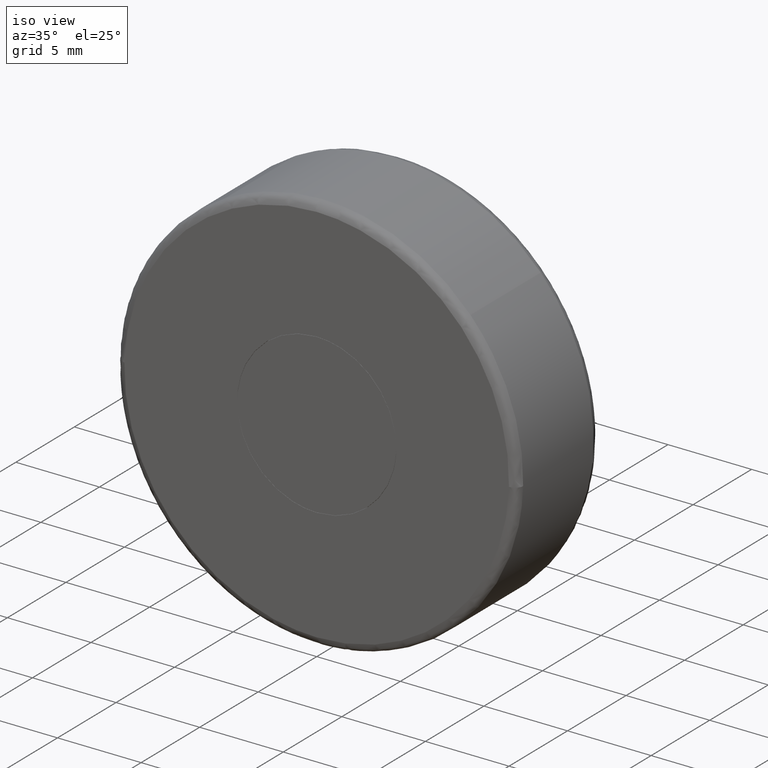
[diagram: clean part render]
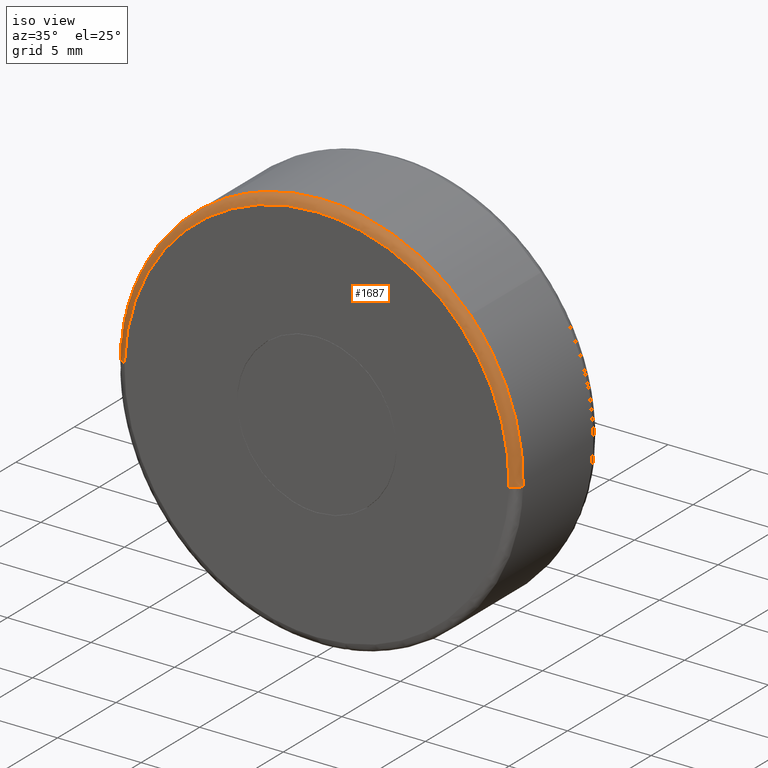
[diagram: same view with one face highlighted and labeled with its STEP entity id]
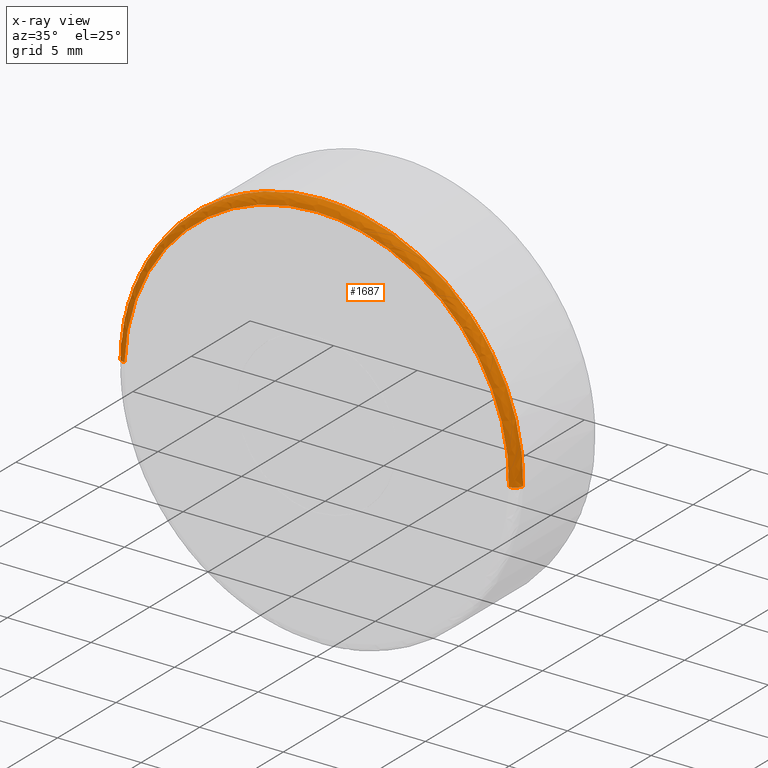
[diagram: x-ray of the same camera — body ghosted, the highlighted face saturated]
A machine part, iso view. The second image highlights one B-rep face of the part: STEP entity #1687.
The next image is the same camera in x-ray: the body ghosted, the highlighted face saturated — about 0% of this face is hidden behind the body in this view.
In plain terms, the highlighted face is a freeform B-spline surface patch.
Its self-contained STEP definition (entity closure, byte-faithful):
#1320=CARTESIAN_POINT('',(-5.810634932665174,0.499999999980924,10.499358155586769));
#1321=VERTEX_POINT('',#1320);
#1322=CARTESIAN_POINT('',(-11.996210271399590,0.499999999851395,0.301561145320187));
#1323=VERTEX_POINT('',#1322);
#1324=CARTESIAN_POINT('',(-5.810634932665174,0.499999999980924,10.499358155586771));
#1325=CARTESIAN_POINT('',(-11.823509306634717,0.499999999938666,7.171667322931254));
#1326=CARTESIAN_POINT('',(-11.996210271399599,0.499999999851396,0.301561145320187));
#1334=(BOUNDED_CURVE()B_SPLINE_CURVE(2,(#1324,#1325,#1326),.UNSPECIFIED.,.F.,.U.)B_SPLINE_CURVE_WITH_KNOTS((3,3),(0.582484261791916,0.745579891769803),.UNSPECIFIED.)CURVE()GEOMETRIC_REPRESENTATION_ITEM()RATIONAL_B_SPLINE_CURVE((0.870495159113431,0.805504439765903,0.989826157681565))REPRESENTATION_ITEM(''));
#1335=EDGE_CURVE('',#1321,#1323,#1334,.T.);
#1406=CARTESIAN_POINT('',(8.847328482693925,0.500000000000004,8.107082010150897));
#1407=VERTEX_POINT('',#1406);
#1413=CARTESIAN_POINT('',(11.996210271399590,0.499999999851395,-0.301561145320187));
#1414=VERTEX_POINT('',#1413);
#1415=CARTESIAN_POINT('',(11.996210271399594,0.499999999851395,-0.301561145320187));
#1416=CARTESIAN_POINT('',(12.000000000000002,0.500000000000000,-0.150804385480692));
#1417=CARTESIAN_POINT('',(12.0,0.500000000000000,-1.535880E-016));
#1418=CARTESIAN_POINT('',(12.000000000000002,0.500000000000000,4.666544030805148));
#1419=CARTESIAN_POINT('',(8.847328482693925,0.500000000000004,8.107082010150897));
#1427=(BOUNDED_CURVE()B_SPLINE_CURVE(2,(#1415,#1416,#1417,#1418,#1419),.UNSPECIFIED.,.F.,.U.)B_SPLINE_CURVE_WITH_KNOTS((3,2,3),(0.245579891769804,0.250000000000000,0.368415192661571),.UNSPECIFIED.)CURVE()GEOMETRIC_REPRESENTATION_ITEM()RATIONAL_B_SPLINE_CURVE((0.989826157681567,0.994821521091816,1.0,0.861267972259750,0.853959782865036))REPRESENTATION_ITEM(''));
#1428=EDGE_CURVE('',#1414,#1407,#1427,.T.);
#1477=CARTESIAN_POINT('',(0.0,0.500000000000000,12.0));
#1478=VERTEX_POINT('',#1477);
#1479=CARTESIAN_POINT('',(0.0,0.500000000000000,12.0));
#1480=CARTESIAN_POINT('',(-3.099093703464986,0.500000000000000,11.999999999999996));
#1481=CARTESIAN_POINT('',(-5.810634932665174,0.499999999980924,10.499358155586771));
#1489=(BOUNDED_CURVE()B_SPLINE_CURVE(2,(#1479,#1480,#1481),.UNSPECIFIED.,.F.,.U.)B_SPLINE_CURVE_WITH_KNOTS((3,3),(0.500000000000000,0.582484261791916),.UNSPECIFIED.)CURVE()GEOMETRIC_REPRESENTATION_ITEM()RATIONAL_B_SPLINE_CURVE((1.0,0.903363676249257,0.870495159113431))REPRESENTATION_ITEM(''));
#1490=EDGE_CURVE('',#1478,#1321,#1489,.T.);
#1492=CARTESIAN_POINT('',(8.847328482693925,0.500000000000004,8.107082010150897));
#1493=CARTESIAN_POINT('',(5.280127149796825,0.500000000000000,12.000000000000002));
#1494=CARTESIAN_POINT('',(0.0,0.500000000000000,12.0));
#1502=(BOUNDED_CURVE()B_SPLINE_CURVE(2,(#1492,#1493,#1494),.UNSPECIFIED.,.F.,.U.)B_SPLINE_CURVE_WITH_KNOTS((3,3),(0.368415192661570,0.500000000000000),.UNSPECIFIED.)CURVE()GEOMETRIC_REPRESENTATION_ITEM()RATIONAL_B_SPLINE_CURVE((0.853959782865036,0.845838808926797,1.0))REPRESENTATION_ITEM(''));
#1503=EDGE_CURVE('',#1407,#1478,#1502,.T.);
#1561=CARTESIAN_POINT('',(-11.496368177523900,-9.688065E-016,0.288996097631335));
#1562=VERTEX_POINT('',#1561);
#1580=CARTESIAN_POINT('',(-11.996210271399599,0.499999999851395,0.301561145320187));
#1581=CARTESIAN_POINT('',(-11.996210271102481,1.533080E-009,0.301561145312582));
#1582=CARTESIAN_POINT('',(-11.496368177523905,-9.688065E-016,0.288996097631335));
#1590=(BOUNDED_CURVE()B_SPLINE_CURVE(2,(#1580,#1581,#1582),.UNSPECIFIED.,.F.,.U.)B_SPLINE_CURVE_WITH_KNOTS((3,3),(-1.723441281372762,-0.263586882101191),.UNSPECIFIED.)CURVE()GEOMETRIC_REPRESENTATION_ITEM()RATIONAL_B_SPLINE_CURVE((0.883897566922966,0.626638727906540,0.888510407924062))REPRESENTATION_ITEM(''));
#1591=EDGE_CURVE('',#1323,#1562,#1590,.T.);
#1595=CARTESIAN_POINT('',(11.496368177523900,-9.609969E-016,-0.288996097631335));
#1596=VERTEX_POINT('',#1595);
#1597=CARTESIAN_POINT('',(11.996210271399599,0.499999999851395,-0.301561145320187));
#1598=CARTESIAN_POINT('',(11.996210271102481,1.533080E-009,-0.301561145312580));
#1599=CARTESIAN_POINT('',(11.496368177523905,-9.609969E-016,-0.288996097631335));
#1607=(BOUNDED_CURVE()B_SPLINE_CURVE(2,(#1597,#1598,#1599),.UNSPECIFIED.,.F.,.U.)B_SPLINE_CURVE_WITH_KNOTS((3,3),(-1.723441281372762,-0.263586882101191),.UNSPECIFIED.)CURVE()GEOMETRIC_REPRESENTATION_ITEM()RATIONAL_B_SPLINE_CURVE((0.883897566922966,0.626638727906540,0.888510407924062))REPRESENTATION_ITEM(''));
#1608=EDGE_CURVE('',#1414,#1596,#1607,.T.);
#1626=CARTESIAN_POINT('',(11.994993809500418,0.534862092272230,-0.301530565859098));
#1627=CARTESIAN_POINT('',(12.296524375359509,0.534862092272230,11.693463243641313));
#1628=CARTESIAN_POINT('',(0.301530565859098,0.534862092272230,11.994993809500418));
#1629=CARTESIAN_POINT('',(-11.693463243641313,0.534862092272230,12.296524375359509));
#1630=CARTESIAN_POINT('',(-11.994993809500418,0.534862092272230,0.301530565859099));
#1631=CARTESIAN_POINT('',(12.035067614781358,-0.038667840746360,-0.302537942550941));
#1632=CARTESIAN_POINT('',(12.337605557332296,-0.038667840746360,11.732529672230413));
#1633=CARTESIAN_POINT('',(0.302537942550941,-0.038667840746360,12.035067614781358));
#1634=CARTESIAN_POINT('',(-11.732529672230413,-0.038667840746360,12.337605557332296));
#1635=CARTESIAN_POINT('',(-12.035067614781358,-0.038667840746360,0.302537942550942));
#1636=CARTESIAN_POINT('',(11.461703840548806,0.001203824725025,-0.288124704325630));
#1637=CARTESIAN_POINT('',(11.749828544874431,0.001203824725025,11.173579136223170));
#1638=CARTESIAN_POINT('',(0.288124704325631,0.001203824725025,11.461703840548806));
#1639=CARTESIAN_POINT('',(-11.173579136223170,0.001203824725025,11.749828544874431));
#1640=CARTESIAN_POINT('',(-11.461703840548806,0.001203824725025,0.288124704325632));
#1648=(BOUNDED_SURFACE()B_SPLINE_SURFACE(2,2,((#1626,#1631,#1636),(#1627,#1632,#1637),(#1628,#1633,#1638),(#1629,#1634,#1639),(#1630,#1635,#1640)),.UNSPECIFIED.,.F.,.F.,.U.)B_SPLINE_SURFACE_WITH_KNOTS((3,2,3),(3,3),(0.0,19.880234857123948,39.760469714247890),(0.0,0.911185162596442),.UNSPECIFIED.)GEOMETRIC_REPRESENTATION_ITEM()RATIONAL_B_SPLINE_SURFACE(((0.910892941386805,0.599412934105556,0.915966621324616),(0.644098575789570,0.423848950436964,0.647686209279166),(0.910892941386805,0.599412934105556,0.915966621324616),(0.644098575789570,0.423848950436964,0.647686209279166),(0.910892941386805,0.599412934105556,0.915966621324616)))REPRESENTATION_ITEM('')SURFACE());
#1649=CARTESIAN_POINT('',(0.0,-2.109424E-015,11.500000000000000));
#1650=VERTEX_POINT('',#1649);
#1651=CARTESIAN_POINT('',(0.0,-2.109424E-015,11.500000000000000));
#1652=CARTESIAN_POINT('',(-11.214545576050815,-2.109424E-015,11.499999999999996));
#1653=CARTESIAN_POINT('',(-11.496368177523905,-9.688065E-016,0.288996097631335));
#1661=(BOUNDED_CURVE()B_SPLINE_CURVE(2,(#1651,#1652,#1653),.UNSPECIFIED.,.F.,.U.)B_SPLINE_CURVE_WITH_KNOTS((3,3),(0.500000000000000,0.745579891769392),.UNSPECIFIED.)CURVE()GEOMETRIC_REPRESENTATION_ITEM()RATIONAL_B_SPLINE_CURVE((1.0,0.712285260095214,0.989826157680637))REPRESENTATION_ITEM(''));
#1662=EDGE_CURVE('',#1650,#1562,#1661,.T.);
#1663=ORIENTED_EDGE('',*,*,#1662,.F.);
#1664=CARTESIAN_POINT('',(11.496368177523902,-9.609969E-016,-0.288996097631335));
#1665=CARTESIAN_POINT('',(11.500000000000000,-2.109424E-015,-0.144520869432563));
#1666=CARTESIAN_POINT('',(11.500000000000000,-2.109424E-015,-1.535880E-016));
#1667=CARTESIAN_POINT('',(11.500000000000000,-2.109424E-015,11.500000000000000));
#1668=CARTESIAN_POINT('',(0.0,-2.109424E-015,11.500000000000000));
#1676=(BOUNDED_CURVE()B_SPLINE_CURVE(2,(#1664,#1665,#1666,#1667,#1668),.UNSPECIFIED.,.F.,.U.)B_SPLINE_CURVE_WITH_KNOTS((3,2,3),(0.245579891769391,0.250000000000000,0.500000000000000),.UNSPECIFIED.)CURVE()GEOMETRIC_REPRESENTATION_ITEM()RATIONAL_B_SPLINE_CURVE((0.989826157680634,0.994821521091332,1.0,0.707106781186548,1.0))REPRESENTATION_ITEM(''));
#1677=EDGE_CURVE('',#1596,#1650,#1676,.T.);
#1678=ORIENTED_EDGE('',*,*,#1677,.F.);
#1679=ORIENTED_EDGE('',*,*,#1608,.F.);
#1680=ORIENTED_EDGE('',*,*,#1428,.T.);
#1681=ORIENTED_EDGE('',*,*,#1503,.T.);
#1682=ORIENTED_EDGE('',*,*,#1490,.T.);
#1683=ORIENTED_EDGE('',*,*,#1335,.T.);
#1684=ORIENTED_EDGE('',*,*,#1591,.T.);
#1685=EDGE_LOOP('',(#1663,#1678,#1679,#1680,#1681,#1682,#1683,#1684));
#1686=FACE_OUTER_BOUND('',#1685,.T.);
#1687=ADVANCED_FACE('',(#1686),#1648,.T.);